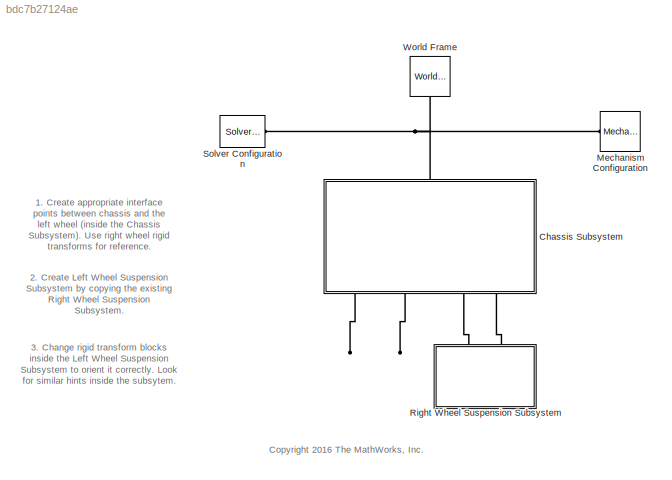
MODEL slx_bdc7b27124ae
KIND model
CONFIG AbsTol = auto
CONFIG FixedStep = auto
CONFIG MaxStep = auto
CONFIG MinStep = auto
CONFIG PreLoadFcn = susp_ex_params
CONFIG RelTol = 1e-3
CONFIG SampleTimeConstraint = Unconstrained
CONFIG Solver = ode45
CONFIG SolverMode = Auto
CONFIG SolverName = ode45
CONFIG StartTime = 0.0
CONFIG StopTime = 10
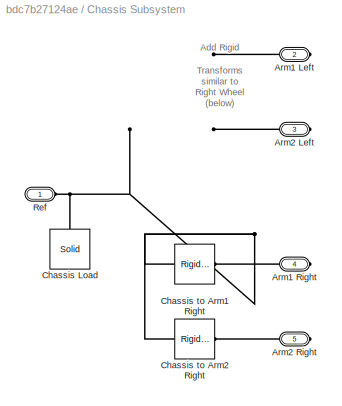
BLOCK [SubSystem] Chassis Subsystem
  Ports = [0, 0, 0, 0, 0, 1, 4]
  RequestExecContextInheritance = off
  Variant = off
BLOCK [PMIOPort] Chassis Subsystem/Arm1 Left
  Port = 2
  Side = Right
BLOCK [PMIOPort] Chassis Subsystem/Arm1 Right
  Port = 4
  Side = Right
BLOCK [PMIOPort] Chassis Subsystem/Arm2 Left
  Port = 3
  Side = Right
BLOCK [PMIOPort] Chassis Subsystem/Arm2 Right
  Port = 5
  Side = Right
BLOCK [Reference] Chassis Subsystem/Chassis Load  REF=sm_lib/Body Elements/Solid
  Ports = [0, 0, 0, 0, 0, 0, 1]
  SourceBlock = sm_lib/Body Elements/Solid
  SourceType = Solid
BLOCK [Reference] Chassis Subsystem/Chassis to Arm1 Right  REF=sm_lib/Frames and
Transforms/Rigid
Transform
  Ports = [0, 0, 0, 0, 0, 1, 1]
  SourceBlock = sm_lib/Frames and\nTransforms/Rigid\nTransform
  SourceType = Rigid\nTransform
BLOCK [Reference] Chassis Subsystem/Chassis to Arm2 Right  REF=sm_lib/Frames and
Transforms/Rigid
Transform
  Ports = [0, 0, 0, 0, 0, 1, 1]
  SourceBlock = sm_lib/Frames and\nTransforms/Rigid\nTransform
  SourceType = Rigid\nTransform
BLOCK [PMIOPort] Chassis Subsystem/Ref
  Port = 1
  Side = Left
BLOCK [Reference] Mechanism Configuration  REF=sm_lib/Utilities/Mechanism
Configuration
  Ports = [0, 0, 0, 0, 0, 0, 1]
  SourceBlock = sm_lib/Utilities/Mechanism\nConfiguration
  SourceType = Mechanism\nConfiguration
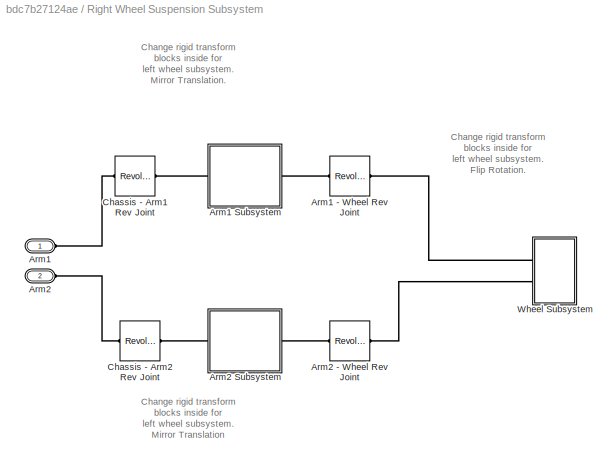
BLOCK [SubSystem] Right Wheel Suspension Subsystem
  Ports = [0, 0, 0, 0, 0, 2]
  RequestExecContextInheritance = off
  Variant = off
BLOCK [PMIOPort] Right Wheel Suspension Subsystem/Arm1
  Port = 1
  Side = Left
BLOCK [Reference] Right Wheel Suspension Subsystem/Arm1 - Wheel Rev Joint  REF=sm_lib/Joints/Revolute Joint
  Ports = [0, 0, 0, 0, 0, 1, 1]
  SourceBlock = sm_lib/Joints/Revolute Joint
  SourceType = Revolute Joint
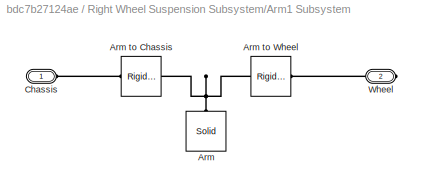
BLOCK [SubSystem] Right Wheel Suspension Subsystem/Arm1 Subsystem
  Ports = [0, 0, 0, 0, 0, 1, 1]
  RequestExecContextInheritance = off
  Variant = off
BLOCK [Reference] Right Wheel Suspension Subsystem/Arm1 Subsystem/Arm  REF=sm_lib/Body Elements/Solid
  Ports = [0, 0, 0, 0, 0, 0, 1]
  SourceBlock = sm_lib/Body Elements/Solid
  SourceType = Solid
BLOCK [Reference] Right Wheel Suspension Subsystem/Arm1 Subsystem/Arm to Chassis  REF=sm_lib/Frames and
Transforms/Rigid
Transform
  Ports = [0, 0, 0, 0, 0, 1, 1]
  SourceBlock = sm_lib/Frames and\nTransforms/Rigid\nTransform
  SourceType = Rigid\nTransform
BLOCK [Reference] Right Wheel Suspension Subsystem/Arm1 Subsystem/Arm to Wheel  REF=sm_lib/Frames and
Transforms/Rigid
Transform
  Ports = [0, 0, 0, 0, 0, 1, 1]
  SourceBlock = sm_lib/Frames and\nTransforms/Rigid\nTransform
  SourceType = Rigid\nTransform
BLOCK [PMIOPort] Right Wheel Suspension Subsystem/Arm1 Subsystem/Chassis
  Port = 1
  Side = Left
BLOCK [PMIOPort] Right Wheel Suspension Subsystem/Arm1 Subsystem/Wheel
  Port = 2
  Side = Right
BLOCK [PMIOPort] Right Wheel Suspension Subsystem/Arm2
  Port = 2
  Side = Left
BLOCK [Reference] Right Wheel Suspension Subsystem/Arm2 - Wheel Rev Joint  REF=sm_lib/Joints/Revolute Joint
  Ports = [0, 0, 0, 0, 0, 1, 1]
  SourceBlock = sm_lib/Joints/Revolute Joint
  SourceType = Revolute Joint
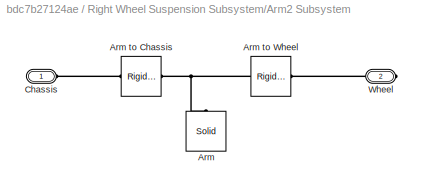
BLOCK [SubSystem] Right Wheel Suspension Subsystem/Arm2 Subsystem
  Ports = [0, 0, 0, 0, 0, 1, 1]
  RequestExecContextInheritance = off
  Variant = off
BLOCK [Reference] Right Wheel Suspension Subsystem/Arm2 Subsystem/Arm  REF=sm_lib/Body Elements/Solid
  Ports = [0, 0, 0, 0, 0, 0, 1]
  SourceBlock = sm_lib/Body Elements/Solid
  SourceType = Solid
BLOCK [Reference] Right Wheel Suspension Subsystem/Arm2 Subsystem/Arm to Chassis  REF=sm_lib/Frames and
Transforms/Rigid
Transform
  Ports = [0, 0, 0, 0, 0, 1, 1]
  SourceBlock = sm_lib/Frames and\nTransforms/Rigid\nTransform
  SourceType = Rigid\nTransform
BLOCK [Reference] Right Wheel Suspension Subsystem/Arm2 Subsystem/Arm to Wheel  REF=sm_lib/Frames and
Transforms/Rigid
Transform
  Ports = [0, 0, 0, 0, 0, 1, 1]
  SourceBlock = sm_lib/Frames and\nTransforms/Rigid\nTransform
  SourceType = Rigid\nTransform
BLOCK [PMIOPort] Right Wheel Suspension Subsystem/Arm2 Subsystem/Chassis
  Port = 1
  Side = Left
BLOCK [PMIOPort] Right Wheel Suspension Subsystem/Arm2 Subsystem/Wheel
  Port = 2
  Side = Right
BLOCK [Reference] Right Wheel Suspension Subsystem/Chassis - Arm1 Rev Joint  REF=sm_lib/Joints/Revolute Joint
  Ports = [0, 0, 0, 0, 0, 1, 1]
  SourceBlock = sm_lib/Joints/Revolute Joint
  SourceType = Revolute Joint
BLOCK [Reference] Right Wheel Suspension Subsystem/Chassis - Arm2 Rev Joint  REF=sm_lib/Joints/Revolute Joint
  Ports = [0, 0, 0, 0, 0, 1, 1]
  SourceBlock = sm_lib/Joints/Revolute Joint
  SourceType = Revolute Joint
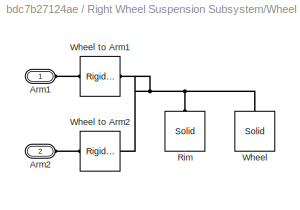
BLOCK [SubSystem] Right Wheel Suspension Subsystem/Wheel Subsystem
  Ports = [0, 0, 0, 0, 0, 2]
  RequestExecContextInheritance = off
  Variant = off
BLOCK [PMIOPort] Right Wheel Suspension Subsystem/Wheel Subsystem/Arm1
  Port = 1
  Side = Left
BLOCK [PMIOPort] Right Wheel Suspension Subsystem/Wheel Subsystem/Arm2
  Port = 2
  Side = Left
BLOCK [Reference] Right Wheel Suspension Subsystem/Wheel Subsystem/Rim  REF=sm_lib/Body Elements/Solid
  Ports = [0, 0, 0, 0, 0, 0, 1]
  SourceBlock = sm_lib/Body Elements/Solid
  SourceType = Solid
BLOCK [Reference] Right Wheel Suspension Subsystem/Wheel Subsystem/Wheel  REF=sm_lib/Body Elements/Solid
  Ports = [0, 0, 0, 0, 0, 0, 1]
  SourceBlock = sm_lib/Body Elements/Solid
  SourceType = Solid
BLOCK [Reference] Right Wheel Suspension Subsystem/Wheel Subsystem/Wheel to Arm1  REF=sm_lib/Frames and
Transforms/Rigid
Transform
  Ports = [0, 0, 0, 0, 0, 1, 1]
  SourceBlock = sm_lib/Frames and\nTransforms/Rigid\nTransform
  SourceType = Rigid\nTransform
BLOCK [Reference] Right Wheel Suspension Subsystem/Wheel Subsystem/Wheel to Arm2  REF=sm_lib/Frames and
Transforms/Rigid
Transform
  Ports = [0, 0, 0, 0, 0, 1, 1]
  SourceBlock = sm_lib/Frames and\nTransforms/Rigid\nTransform
  SourceType = Rigid\nTransform
BLOCK [Reference] Solver Configuration  REF=nesl_utility/Solver
Configuration
  Ports = [0, 0, 0, 0, 0, 0, 1]
  SourceBlock = nesl_utility/Solver\nConfiguration
  SourceType = Solver\nConfiguration
BLOCK [Reference] World Frame  REF=sm_lib/Frames and
Transforms/World Frame
  Ports = [0, 0, 0, 0, 0, 0, 1]
  SourceBlock = sm_lib/Frames and\nTransforms/World Frame
  SourceType = World Frame
ANNOTATION (root): 1. Create appropriate interface points between chassis and the left wheel (inside the Chassis Subsystem). Use right wheel rigid transforms for reference.
ANNOTATION (root): 2. Create Left Wheel Suspension Subsystem by copying the existing Right Wheel Suspension Subsystem.
ANNOTATION (root): 3. Change rigid transform blocks inside the Left Wheel Suspension Subsystem to orient it correctly. Look for similar hints inside the subsytem.
ANNOTATION (root): <copyright redacted>
ANNOTATION Chassis Subsystem: Add Rigid Transforms similar to Right Wheel (below)
ANNOTATION Right Wheel Suspension Subsystem: Change rigid transform blocks inside for left wheel subsystem. Flip Rotation.
ANNOTATION Right Wheel Suspension Subsystem: Change rigid transform blocks inside for left wheel subsystem. Mirror Translation.
ANNOTATION Right Wheel Suspension Subsystem: Change rigid transform blocks inside for left wheel subsystem. Mirror Translation
PLINE Chassis Subsystem/Arm1 Right:RConn1 -- Chassis Subsystem/Chassis to Arm1 Right:RConn1
PLINE Chassis Subsystem/Arm2 Right:RConn1 -- Chassis Subsystem/Chassis to Arm2 Right:RConn1
PNET net1: Chassis Subsystem/Chassis Load:RConn1 -- Chassis Subsystem/Chassis to Arm1 Right:LConn1 -- Chassis Subsystem/Chassis to Arm2 Right:LConn1 -- Chassis Subsystem/Ref:RConn1
PNET net2: Chassis Subsystem:LConn1 -- Mechanism Configuration:RConn1 -- Solver Configuration:RConn1 -- World Frame:RConn1
PLINE Chassis Subsystem:RConn3 -- Right Wheel Suspension Subsystem:LConn1
PLINE Chassis Subsystem:RConn4 -- Right Wheel Suspension Subsystem:LConn2
PLINE Right Wheel Suspension Subsystem/Arm1 - Wheel Rev Joint:LConn1 -- Right Wheel Suspension Subsystem/Arm1 Subsystem:RConn1
PLINE Right Wheel Suspension Subsystem/Arm1 - Wheel Rev Joint:RConn1 -- Right Wheel Suspension Subsystem/Wheel Subsystem:LConn1
PNET net3: Right Wheel Suspension Subsystem/Arm1 Subsystem/Arm to Chassis:LConn1 -- Right Wheel Suspension Subsystem/Arm1 Subsystem/Arm to Wheel:LConn1 -- Right Wheel Suspension Subsystem/Arm1 Subsystem/Arm:RConn1
PLINE Right Wheel Suspension Subsystem/Arm1 Subsystem/Arm to Chassis:RConn1 -- Right Wheel Suspension Subsystem/Arm1 Subsystem/Chassis:RConn1
PLINE Right Wheel Suspension Subsystem/Arm1 Subsystem/Arm to Wheel:RConn1 -- Right Wheel Suspension Subsystem/Arm1 Subsystem/Wheel:RConn1
PLINE Right Wheel Suspension Subsystem/Arm1 Subsystem:LConn1 -- Right Wheel Suspension Subsystem/Chassis - Arm1 Rev Joint:RConn1
PLINE Right Wheel Suspension Subsystem/Arm1:RConn1 -- Right Wheel Suspension Subsystem/Chassis - Arm1 Rev Joint:LConn1
PLINE Right Wheel Suspension Subsystem/Arm2 - Wheel Rev Joint:LConn1 -- Right Wheel Suspension Subsystem/Arm2 Subsystem:RConn1
PLINE Right Wheel Suspension Subsystem/Arm2 - Wheel Rev Joint:RConn1 -- Right Wheel Suspension Subsystem/Wheel Subsystem:LConn2
PNET net4: Right Wheel Suspension Subsystem/Arm2 Subsystem/Arm to Chassis:LConn1 -- Right Wheel Suspension Subsystem/Arm2 Subsystem/Arm to Wheel:LConn1 -- Right Wheel Suspension Subsystem/Arm2 Subsystem/Arm:RConn1
PLINE Right Wheel Suspension Subsystem/Arm2 Subsystem/Arm to Chassis:RConn1 -- Right Wheel Suspension Subsystem/Arm2 Subsystem/Chassis:RConn1
PLINE Right Wheel Suspension Subsystem/Arm2 Subsystem/Arm to Wheel:RConn1 -- Right Wheel Suspension Subsystem/Arm2 Subsystem/Wheel:RConn1
PLINE Right Wheel Suspension Subsystem/Arm2 Subsystem:LConn1 -- Right Wheel Suspension Subsystem/Chassis - Arm2 Rev Joint:RConn1
PLINE Right Wheel Suspension Subsystem/Arm2:RConn1 -- Right Wheel Suspension Subsystem/Chassis - Arm2 Rev Joint:LConn1
PLINE Right Wheel Suspension Subsystem/Wheel Subsystem/Arm1:RConn1 -- Right Wheel Suspension Subsystem/Wheel Subsystem/Wheel to Arm1:RConn1
PLINE Right Wheel Suspension Subsystem/Wheel Subsystem/Arm2:RConn1 -- Right Wheel Suspension Subsystem/Wheel Subsystem/Wheel to Arm2:RConn1
PNET net5: Right Wheel Suspension Subsystem/Wheel Subsystem/Rim:RConn1 -- Right Wheel Suspension Subsystem/Wheel Subsystem/Wheel to Arm1:LConn1 -- Right Wheel Suspension Subsystem/Wheel Subsystem/Wheel to Arm2:LConn1 -- Right Wheel Suspension Subsystem/Wheel Subsystem/Wheel:RConn1
note: PNET lines group multi-terminal physical nets as a canonical sorted terminal list (undirected conserving connections); 2-terminal nets keep the pairwise PLINE form
